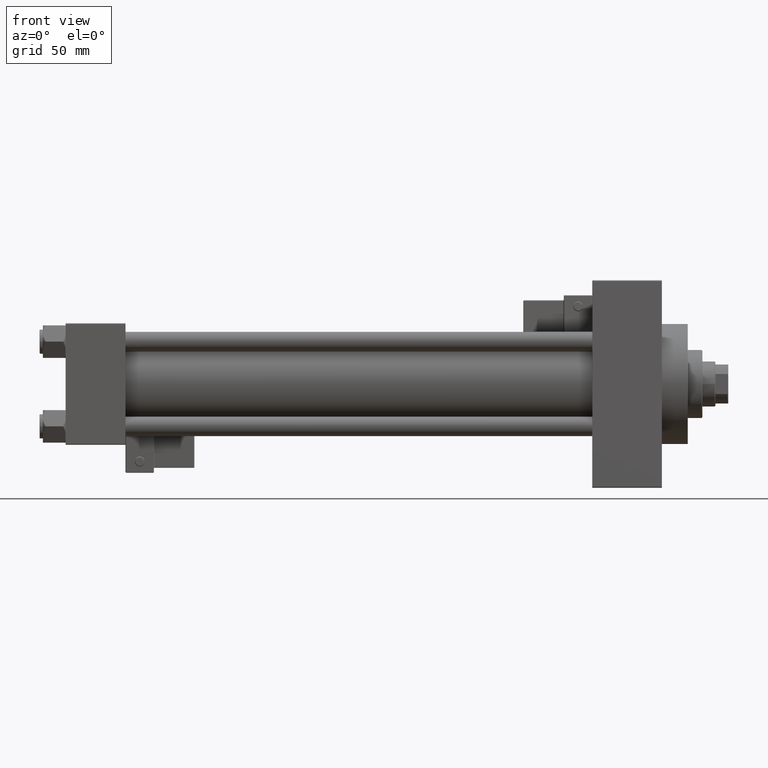
[diagram: clean part render]
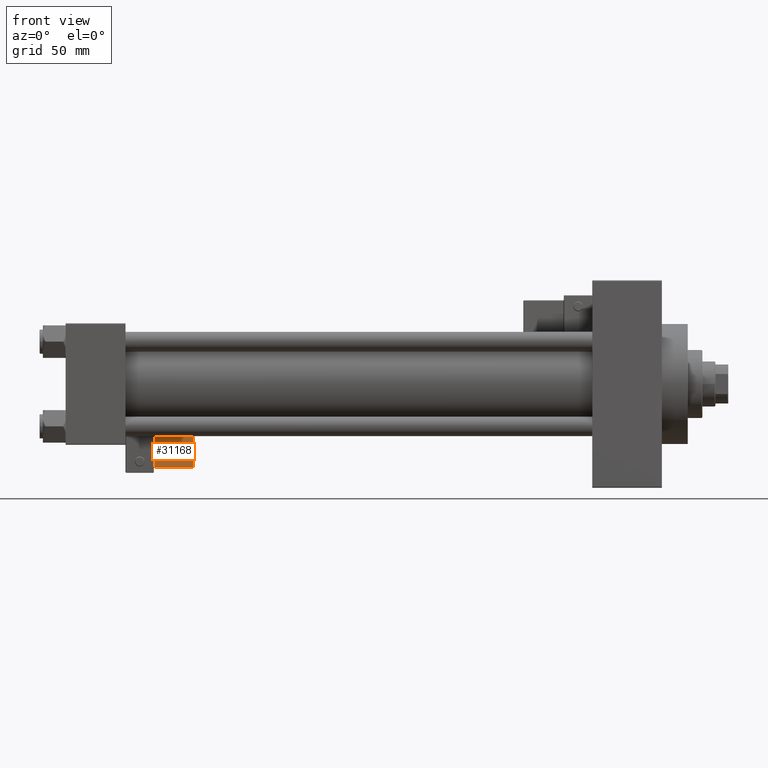
[diagram: same view with one face highlighted and labeled with its STEP entity id]
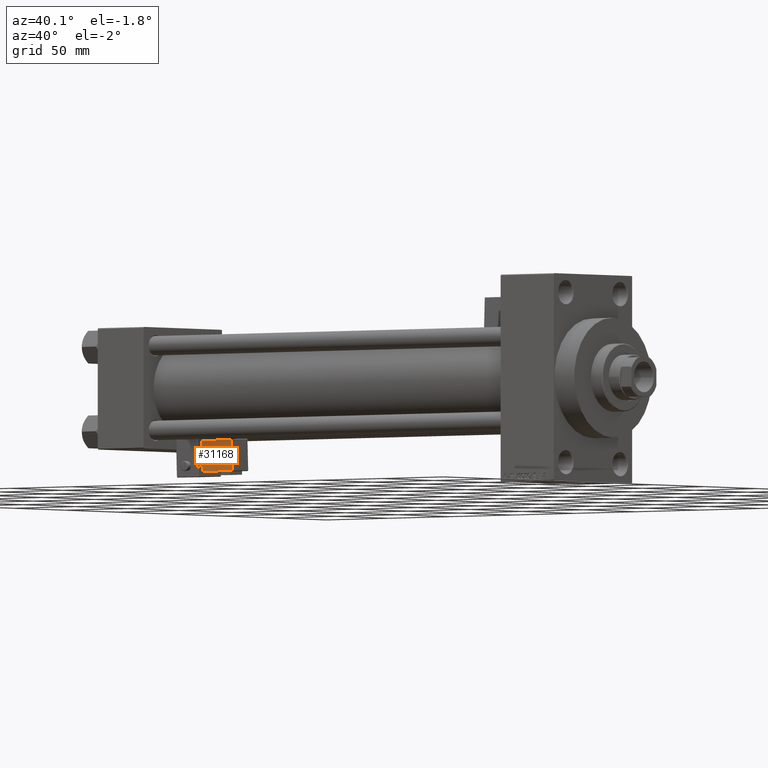
[diagram: same view with one face highlighted and labeled with its STEP entity id]
A machine part, front view. The second image highlights one B-rep face of the part: STEP entity #31168.
A second angle (auxiliary view) of the same face is appended — the face is thin or edge-on in the first view.
In plain terms, the highlighted planar face has unit normal (0, 0.9994, 0.0353).
Its self-contained STEP definition (entity closure, byte-faithful):
#393 = VERTEX_POINT ( 'NONE', #24984 ) ;
#1373 = AXIS2_PLACEMENT_3D ( 'NONE', #42830, #14752, #2754 ) ;
#2754 = DIRECTION ( 'NONE',  ( 0.000000000000000000, -0.000000000000000000, 1.000000000000000000 ) ) ;
#3086 = LINE ( 'NONE', #31711, #42053 ) ;
#4168 = ORIENTED_EDGE ( 'NONE', *, *, #31623, .T. ) ;
#5528 = CARTESIAN_POINT ( 'NONE',  ( 33.24999999999999289, -36.25000000000000000, 2.500000000000008438 ) ) ;
#7101 = LINE ( 'NONE', #7356, #22212 ) ;
#7356 = CARTESIAN_POINT ( 'NONE',  ( 9.250000000000005329, -36.25000000000000000, 2.000000000000005329 ) ) ;
#8422 = CARTESIAN_POINT ( 'NONE',  ( 9.250000000000005329, -36.25000000000000000, 2.500000000000004885 ) ) ;
#9940 = VECTOR ( 'NONE', #40237, 1000.000000000000000 ) ;
#10251 = VERTEX_POINT ( 'NONE', #5528 ) ;
#10400 = ORIENTED_EDGE ( 'NONE', *, *, #36780, .T. ) ;
#14752 = DIRECTION ( 'NONE',  ( -0.000000000000000000, 1.000000000000000000, 0.000000000000000000 ) ) ;
#16514 = EDGE_LOOP ( 'NONE', ( #4168, #10400, #29125, #35419 ) ) ;
#22212 = VECTOR ( 'NONE', #34960, 1000.000000000000000 ) ;
#24041 = DIRECTION ( 'NONE',  ( -1.734723475976807587E-16, -0.000000000000000000, 1.000000000000000000 ) ) ;
#24374 = CARTESIAN_POINT ( 'NONE',  ( 33.75000000000000000, -36.25000000000000000, 2.500000000000009326 ) ) ;
#24984 = CARTESIAN_POINT ( 'NONE',  ( 33.24999999999999289, -36.25000000000000000, 21.50000000000000000 ) ) ;
#26123 = VERTEX_POINT ( 'NONE', #8422 ) ;
#27437 = LINE ( 'NONE', #39912, #43401 ) ;
#29125 = ORIENTED_EDGE ( 'NONE', *, *, #47389, .T. ) ;
#29565 = EDGE_CURVE ( 'NONE', #393, #44651, #3086, .T. ) ;
#30361 = PLANE ( 'NONE',  #1373 ) ;
#31168 = ADVANCED_FACE ( 'NONE', ( #34521 ), #30361, .F. ) ;
#31623 = EDGE_CURVE ( 'NONE', #44651, #26123, #7101, .T. ) ;
#31711 = CARTESIAN_POINT ( 'NONE',  ( 33.75000000000000000, -36.25000000000000000, 21.50000000000000000 ) ) ;
#34521 = FACE_OUTER_BOUND ( 'NONE', #16514, .T. ) ;
#34855 = DIRECTION ( 'NONE',  ( -1.000000000000000000, 0.000000000000000000, -1.334402673828313339E-16 ) ) ;
#34960 = DIRECTION ( 'NONE',  ( 1.334402673828313339E-16, 0.000000000000000000, -1.000000000000000000 ) ) ;
#35419 = ORIENTED_EDGE ( 'NONE', *, *, #29565, .T. ) ;
#36780 = EDGE_CURVE ( 'NONE', #26123, #10251, #40494, .T. ) ;
#38122 = CARTESIAN_POINT ( 'NONE',  ( 9.250000000000003553, -36.25000000000000000, 21.50000000000000000 ) ) ;
#39912 = CARTESIAN_POINT ( 'NONE',  ( 33.24999999999999289, -36.25000000000000000, 22.00000000000000355 ) ) ;
#40237 = DIRECTION ( 'NONE',  ( 1.000000000000000000, -0.000000000000000000, 1.334402673828313339E-16 ) ) ;
#40494 = LINE ( 'NONE', #24374, #9940 ) ;
#42053 = VECTOR ( 'NONE', #34855, 1000.000000000000000 ) ;
#42830 = CARTESIAN_POINT ( 'NONE',  ( 33.75000000000000000, -36.25000000000000000, 22.00000000000000355 ) ) ;
#43401 = VECTOR ( 'NONE', #24041, 1000.000000000000000 ) ;
#44651 = VERTEX_POINT ( 'NONE', #38122 ) ;
#47389 = EDGE_CURVE ( 'NONE', #10251, #393, #27437, .T. ) ;